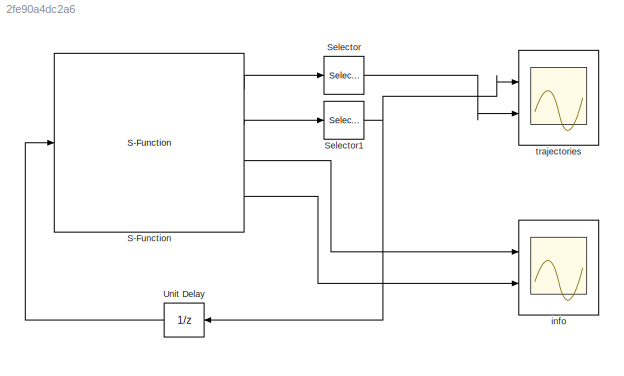
MODEL slx_2fe90a4dc2a6
KIND model
CONFIG AbsTol = auto
CONFIG EnableMultiTasking = off
CONFIG FixedStep = auto
CONFIG MaxStep = auto
CONFIG MinStep = auto
CONFIG RelTol = 1e-3
CONFIG SampleTimeConstraint = Unconstrained
CONFIG Solver = VariableStepAuto
CONFIG SolverName = VariableStepAuto
CONFIG StartTime = 0.0
CONFIG StopTime = 30*Ts
BLOCK [S-Function] S-Function
  EnableBusSupport = off
  FunctionName = hpipm_solver_sfunction
  Ports = [1, 4]
  SFcnIsStateOwnerBlock = off
  SFunctionDeploymentMode = off
BLOCK [Selector] Selector
  IndexOptions = Index vector (dialog)
  Indices = 1:NU
  InputPortWidth = NU*N
  OutputSizes = 1
  Ports = [1, 1]
BLOCK [Selector] Selector1
  IndexOptions = Index vector (dialog)
  Indices = (NX+1):(2*NX)
  InputPortWidth = NX*(N+1)
  OutputSizes = 1
  Ports = [1, 1]
BLOCK [UnitDelay] Unit Delay
  InitialCondition = x0
  InputProcessing = Elements as channels (sample based)
  SampleTime = Ts
BLOCK [Scope] info
  NumInputPorts = 2
  Ports = [2]
  ScopeSpecificationString = Simulink.scopes.TimeScopeBlockCfg('CurrentConfiguration', extmgr.ConfigurationSet(extmgr.Configuration('Core','General UI',true),extmgr.Configuration('Core','Source UI',true),extmgr.Configuration('Sources','WiredSimulink',true,'DataLoggingVariableName','ScopeData1'),extmgr.Configuration('Visuals','Time Domain',true,'SerializedDisplays',{struct('MinYLimReal','-1.00000','MaxYLimReal','1.00000','YLab...<+2012ch>
BLOCK [Scope] trajectories
  NumInputPorts = 2
  Ports = [2]
  ScopeSpecificationString = Simulink.scopes.TimeScopeBlockCfg('CurrentConfiguration', extmgr.ConfigurationSet(extmgr.Configuration('Core','General UI',true),extmgr.Configuration('Core','Source UI',true),extmgr.Configuration('Sources','WiredSimulink',true),extmgr.Configuration('Visuals','Time Domain',true,'SerializedDisplays',{struct('MinYLimReal','-0.58565','MaxYLimReal','1.60003','YLabelReal','','MinYLimMag','0.00000','MaxY...<+1977ch>
LINE S-Function:1 -> Selector:1
LINE S-Function:2 -> Selector1:1
LINE S-Function:3 -> info:1
LINE S-Function:4 -> info:2
NET Selector1:1 -> Unit Delay:1, trajectories:1
LINE Selector:1 -> trajectories:2
LINE Unit Delay:1 -> S-Function:1
note: NET lines group one-source signal fan-out (src -> all destinations, sorted); 1:1 wires keep LINE
